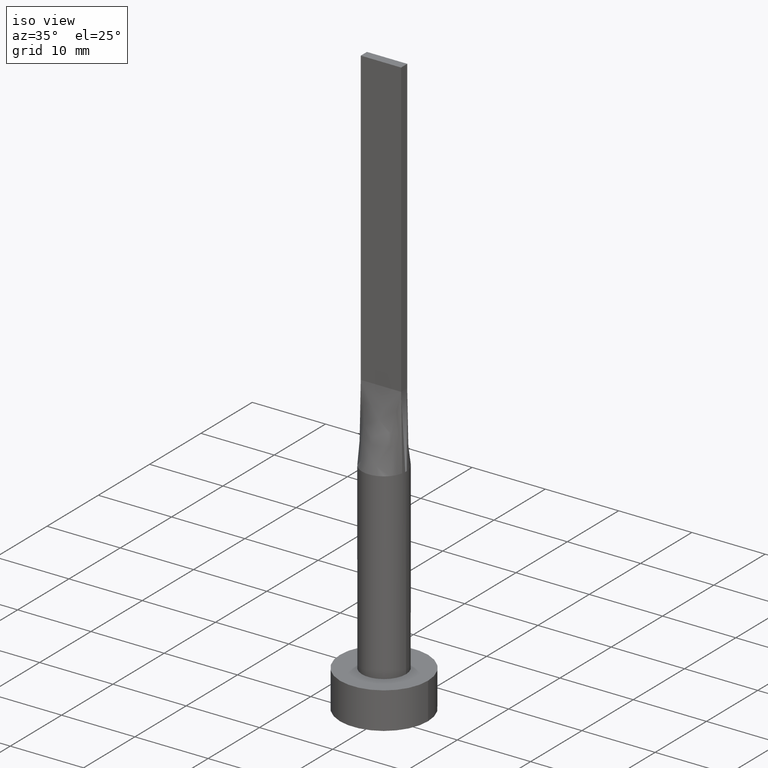
[diagram: clean part render]
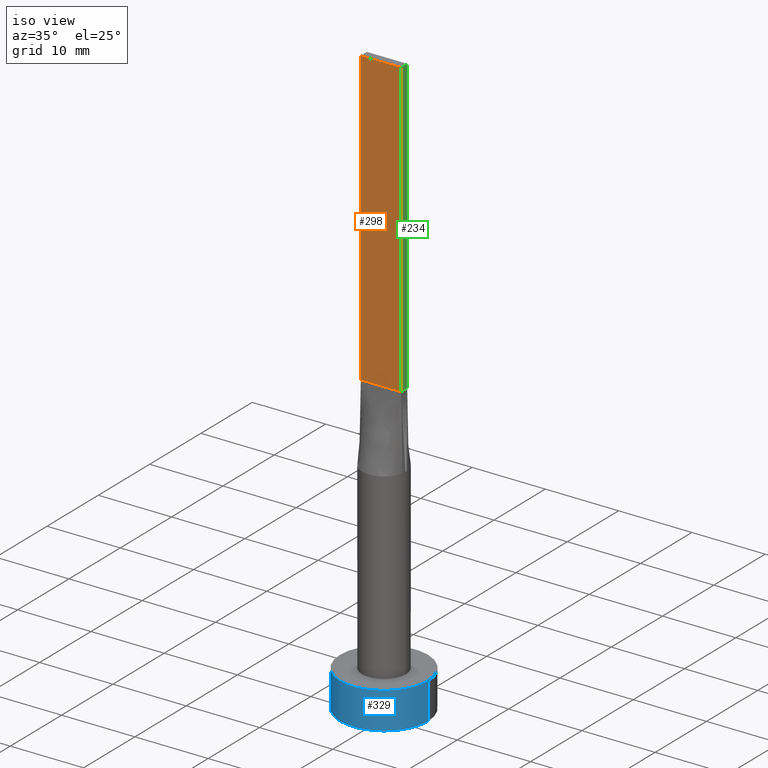
[diagram: same view with three faces highlighted in distinct colors, each labeled with its STEP entity id]
A machine part, iso view with three faces highlighted in distinct colors.
Their STEP definitions:

[orange] entity #298 — the highlighted planar face has unit normal (0, 1, -0).
#9 = CARTESIAN_POINT ( 'NONE',  ( 2.750000000000000000, -0.5999999999999997558, 80.00000000000000000 ) ) ;
#29 = LINE ( 'NONE', #544, #565 ) ;
#47 = PLANE ( 'NONE',  #410 ) ;
#53 = EDGE_LOOP ( 'NONE', ( #392, #525, #56, #324 ) ) ;
#56 = ORIENTED_EDGE ( 'NONE', *, *, #436, .F. ) ;
#68 = LINE ( 'NONE', #250, #502 ) ;
#77 = VERTEX_POINT ( 'NONE', #9 ) ;
#81 = DIRECTION ( 'NONE',  ( -0.000000000000000000, -0.000000000000000000, -1.000000000000000000 ) ) ;
#82 = VERTEX_POINT ( 'NONE', #309 ) ;
#94 = VERTEX_POINT ( 'NONE', #404 ) ;
#98 = CARTESIAN_POINT ( 'NONE',  ( -2.750000000000000000, -0.5999999999999994227, 80.00000000000000000 ) ) ;
#127 = VERTEX_POINT ( 'NONE', #161 ) ;
#136 = LINE ( 'NONE', #347, #306 ) ;
#160 = DIRECTION ( 'NONE',  ( 1.000000000000000000, -5.913830031739115543E-17, 0.000000000000000000 ) ) ;
#161 = CARTESIAN_POINT ( 'NONE',  ( -2.750000000000000000, -0.5999999999999994227, 40.00000000000000000 ) ) ;
#181 = EDGE_CURVE ( 'NONE', #77, #94, #68, .T. ) ;
#215 = LINE ( 'NONE', #478, #465 ) ;
#250 = CARTESIAN_POINT ( 'NONE',  ( 2.750000000000000000, -0.5999999999999997558, 80.00000000000000000 ) ) ;
#268 = DIRECTION ( 'NONE',  ( -1.000000000000000000, 5.913830031739115543E-17, 0.000000000000000000 ) ) ;
#276 = DIRECTION ( 'NONE',  ( 5.913830031739115543E-17, 1.000000000000000000, -0.000000000000000000 ) ) ;
#298 = ADVANCED_FACE ( 'NONE', ( #551 ), #47, .F. ) ;
#306 = VECTOR ( 'NONE', #314, 1000.000000000000000 ) ;
#309 = CARTESIAN_POINT ( 'NONE',  ( -2.750000000000000000, -0.5999999999999994227, 80.00000000000000000 ) ) ;
#314 = DIRECTION ( 'NONE',  ( 1.000000000000000000, -5.913830031739115543E-17, 0.000000000000000000 ) ) ;
#324 = ORIENTED_EDGE ( 'NONE', *, *, #379, .T. ) ;
#347 = CARTESIAN_POINT ( 'NONE',  ( -2.750000000000000000, -0.5999999999999994227, 40.00000000000000000 ) ) ;
#379 = EDGE_CURVE ( 'NONE', #82, #127, #29, .T. ) ;
#392 = ORIENTED_EDGE ( 'NONE', *, *, #421, .T. ) ;
#404 = CARTESIAN_POINT ( 'NONE',  ( 2.750000000000000000, -0.5999999999999997558, 40.00000000000000000 ) ) ;
#410 = AXIS2_PLACEMENT_3D ( 'NONE', #98, #276, #268 ) ;
#421 = EDGE_CURVE ( 'NONE', #127, #94, #136, .T. ) ;
#436 = EDGE_CURVE ( 'NONE', #82, #77, #215, .T. ) ;
#465 = VECTOR ( 'NONE', #160, 1000.000000000000000 ) ;
#478 = CARTESIAN_POINT ( 'NONE',  ( -2.750000000000000000, -0.5999999999999994227, 80.00000000000000000 ) ) ;
#483 = DIRECTION ( 'NONE',  ( -0.000000000000000000, -0.000000000000000000, -1.000000000000000000 ) ) ;
#502 = VECTOR ( 'NONE', #81, 1000.000000000000000 ) ;
#525 = ORIENTED_EDGE ( 'NONE', *, *, #181, .F. ) ;
#544 = CARTESIAN_POINT ( 'NONE',  ( -2.750000000000000000, -0.5999999999999994227, 80.00000000000000000 ) ) ;
#551 = FACE_OUTER_BOUND ( 'NONE', #53, .T. ) ;
#565 = VECTOR ( 'NONE', #483, 1000.000000000000000 ) ;

[blue] entity #329 — the highlighted cylindrical surface (partial cylindrical patch) has radius 6 mm, axis along (-0, -0, -1).
#2 = EDGE_CURVE ( 'NONE', #547, #362, #177, .T. ) ;
#6 = ORIENTED_EDGE ( 'NONE', *, *, #400, .T. ) ;
#18 = CARTESIAN_POINT ( 'NONE',  ( 0.000000000000000000, 0.000000000000000000, 5.000000000000000000 ) ) ;
#22 = AXIS2_PLACEMENT_3D ( 'NONE', #18, #52, #398 ) ;
#45 = ORIENTED_EDGE ( 'NONE', *, *, #493, .T. ) ;
#52 = DIRECTION ( 'NONE',  ( 0.000000000000000000, 0.000000000000000000, 1.000000000000000000 ) ) ;
#67 = CARTESIAN_POINT ( 'NONE',  ( -6.000000000000000888, 0.000000000000000000, 5.000000000000000000 ) ) ;
#100 = DIRECTION ( 'NONE',  ( 0.000000000000000000, 0.000000000000000000, 1.000000000000000000 ) ) ;
#106 = AXIS2_PLACEMENT_3D ( 'NONE', #132, #486, #541 ) ;
#132 = CARTESIAN_POINT ( 'NONE',  ( 0.000000000000000000, 0.000000000000000000, 5.000000000000000000 ) ) ;
#137 = ORIENTED_EDGE ( 'NONE', *, *, #199, .F. ) ;
#141 = AXIS2_PLACEMENT_3D ( 'NONE', #403, #100, #277 ) ;
#157 = CARTESIAN_POINT ( 'NONE',  ( 6.000000000000000888, 7.347880794884120722E-16, 5.000000000000000000 ) ) ;
#177 = CIRCLE ( 'NONE', #22, 6.000000000000000888 ) ;
#199 = EDGE_CURVE ( 'NONE', #362, #552, #255, .T. ) ;
#202 = VERTEX_POINT ( 'NONE', #426 ) ;
#218 = ORIENTED_EDGE ( 'NONE', *, *, #2, .F. ) ;
#222 = CARTESIAN_POINT ( 'NONE',  ( -6.000000000000000888, 0.000000000000000000, 5.000000000000000000 ) ) ;
#243 = VECTOR ( 'NONE', #538, 1000.000000000000000 ) ;
#255 = LINE ( 'NONE', #259, #479 ) ;
#259 = CARTESIAN_POINT ( 'NONE',  ( 6.000000000000000888, 7.347880794884120722E-16, 5.000000000000000000 ) ) ;
#277 = DIRECTION ( 'NONE',  ( 1.000000000000000000, 0.000000000000000000, 0.000000000000000000 ) ) ;
#283 = CIRCLE ( 'NONE', #141, 6.000000000000000888 ) ;
#329 = ADVANCED_FACE ( 'NONE', ( #442 ), #360, .T. ) ;
#360 = CYLINDRICAL_SURFACE ( 'NONE', #106, 6.000000000000000888 ) ;
#362 = VERTEX_POINT ( 'NONE', #157 ) ;
#388 = CARTESIAN_POINT ( 'NONE',  ( 6.000000000000000888, 7.347880794884120722E-16, 0.000000000000000000 ) ) ;
#398 = DIRECTION ( 'NONE',  ( 1.000000000000000000, 0.000000000000000000, 0.000000000000000000 ) ) ;
#400 = EDGE_CURVE ( 'NONE', #547, #202, #443, .T. ) ;
#403 = CARTESIAN_POINT ( 'NONE',  ( 0.000000000000000000, 0.000000000000000000, 0.000000000000000000 ) ) ;
#426 = CARTESIAN_POINT ( 'NONE',  ( -6.000000000000000888, 0.000000000000000000, 0.000000000000000000 ) ) ;
#431 = EDGE_LOOP ( 'NONE', ( #137, #218, #6, #45 ) ) ;
#437 = DIRECTION ( 'NONE',  ( -0.000000000000000000, -0.000000000000000000, -1.000000000000000000 ) ) ;
#442 = FACE_OUTER_BOUND ( 'NONE', #431, .T. ) ;
#443 = LINE ( 'NONE', #222, #243 ) ;
#479 = VECTOR ( 'NONE', #437, 1000.000000000000000 ) ;
#486 = DIRECTION ( 'NONE',  ( -0.000000000000000000, -0.000000000000000000, -1.000000000000000000 ) ) ;
#493 = EDGE_CURVE ( 'NONE', #202, #552, #283, .T. ) ;
#538 = DIRECTION ( 'NONE',  ( -0.000000000000000000, -0.000000000000000000, -1.000000000000000000 ) ) ;
#541 = DIRECTION ( 'NONE',  ( -1.000000000000000000, 0.000000000000000000, 0.000000000000000000 ) ) ;
#547 = VERTEX_POINT ( 'NONE', #67 ) ;
#552 = VERTEX_POINT ( 'NONE', #388 ) ;

[green] entity #234 — the highlighted planar face has unit normal (-1, 0, 0).
#9 = CARTESIAN_POINT ( 'NONE',  ( 2.750000000000000000, -0.5999999999999997558, 80.00000000000000000 ) ) ;
#13 = DIRECTION ( 'NONE',  ( -1.000000000000000000, 0.000000000000000000, 0.000000000000000000 ) ) ;
#17 = DIRECTION ( 'NONE',  ( 0.000000000000000000, 0.000000000000000000, 1.000000000000000000 ) ) ;
#27 = EDGE_CURVE ( 'NONE', #94, #579, #192, .T. ) ;
#68 = LINE ( 'NONE', #250, #502 ) ;
#77 = VERTEX_POINT ( 'NONE', #9 ) ;
#81 = DIRECTION ( 'NONE',  ( -0.000000000000000000, -0.000000000000000000, -1.000000000000000000 ) ) ;
#84 = DIRECTION ( 'NONE',  ( -0.000000000000000000, -0.000000000000000000, -1.000000000000000000 ) ) ;
#94 = VERTEX_POINT ( 'NONE', #404 ) ;
#103 = PLANE ( 'NONE',  #533 ) ;
#128 = CARTESIAN_POINT ( 'NONE',  ( 2.750000000000000000, 0.6000000000000001998, 80.00000000000000000 ) ) ;
#170 = ORIENTED_EDGE ( 'NONE', *, *, #323, .F. ) ;
#181 = EDGE_CURVE ( 'NONE', #77, #94, #68, .T. ) ;
#192 = LINE ( 'NONE', #355, #296 ) ;
#216 = LINE ( 'NONE', #308, #416 ) ;
#226 = CARTESIAN_POINT ( 'NONE',  ( 2.750000000000000000, -0.5999999999999997558, 80.00000000000000000 ) ) ;
#228 = FACE_OUTER_BOUND ( 'NONE', #568, .T. ) ;
#232 = VECTOR ( 'NONE', #84, 1000.000000000000000 ) ;
#234 = ADVANCED_FACE ( 'NONE', ( #228 ), #103, .F. ) ;
#250 = CARTESIAN_POINT ( 'NONE',  ( 2.750000000000000000, -0.5999999999999997558, 80.00000000000000000 ) ) ;
#261 = CARTESIAN_POINT ( 'NONE',  ( 2.750000000000000000, 0.6000000000000001998, 80.00000000000000000 ) ) ;
#273 = ORIENTED_EDGE ( 'NONE', *, *, #304, .F. ) ;
#281 = DIRECTION ( 'NONE',  ( -0.000000000000000000, 1.000000000000000000, -0.000000000000000000 ) ) ;
#296 = VECTOR ( 'NONE', #281, 1000.000000000000000 ) ;
#304 = EDGE_CURVE ( 'NONE', #77, #435, #216, .T. ) ;
#308 = CARTESIAN_POINT ( 'NONE',  ( 2.750000000000000000, -0.5999999999999997558, 80.00000000000000000 ) ) ;
#323 = EDGE_CURVE ( 'NONE', #435, #579, #537, .T. ) ;
#355 = CARTESIAN_POINT ( 'NONE',  ( 2.750000000000000000, 0.6000000000000001998, 40.00000000000000000 ) ) ;
#404 = CARTESIAN_POINT ( 'NONE',  ( 2.750000000000000000, -0.5999999999999997558, 40.00000000000000000 ) ) ;
#416 = VECTOR ( 'NONE', #482, 1000.000000000000000 ) ;
#435 = VERTEX_POINT ( 'NONE', #261 ) ;
#444 = CARTESIAN_POINT ( 'NONE',  ( 2.750000000000000000, 0.6000000000000001998, 40.00000000000000000 ) ) ;
#482 = DIRECTION ( 'NONE',  ( 0.000000000000000000, 1.000000000000000000, 0.000000000000000000 ) ) ;
#502 = VECTOR ( 'NONE', #81, 1000.000000000000000 ) ;
#533 = AXIS2_PLACEMENT_3D ( 'NONE', #226, #13, #17 ) ;
#537 = LINE ( 'NONE', #128, #232 ) ;
#568 = EDGE_LOOP ( 'NONE', ( #580, #170, #273, #576 ) ) ;
#576 = ORIENTED_EDGE ( 'NONE', *, *, #181, .T. ) ;
#579 = VERTEX_POINT ( 'NONE', #444 ) ;
#580 = ORIENTED_EDGE ( 'NONE', *, *, #27, .T. ) ;